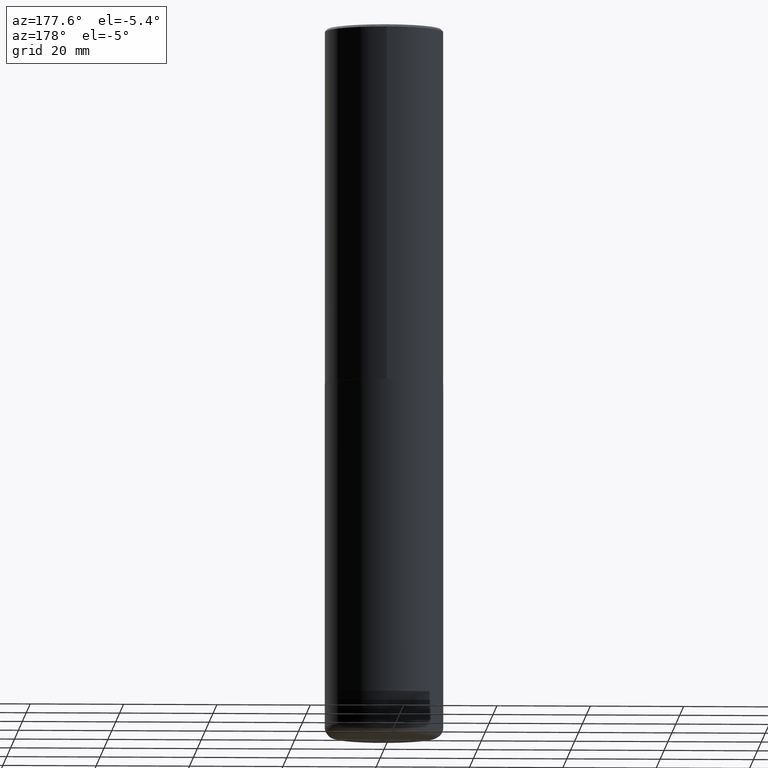
[diagram: clean part render]
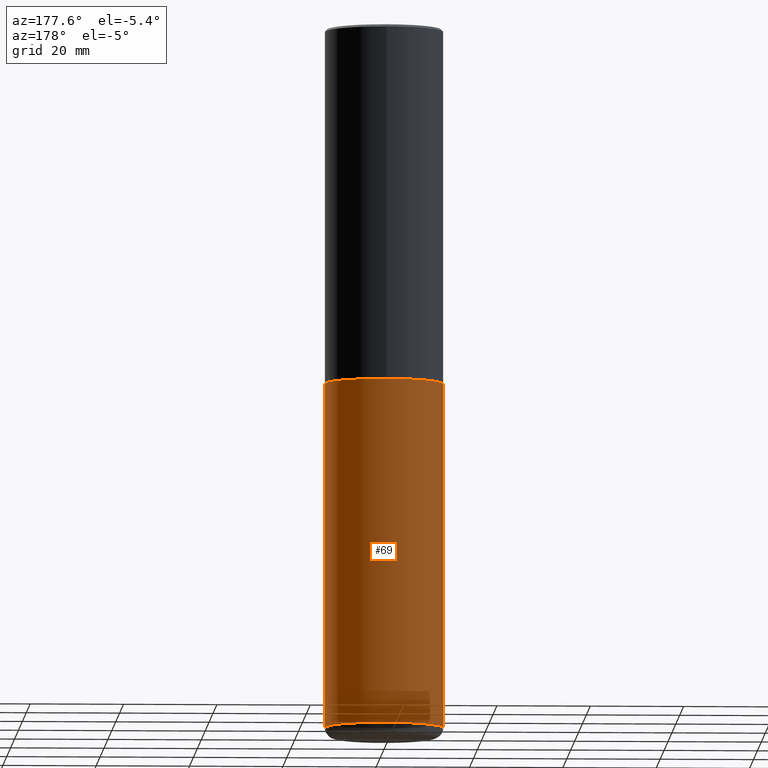
[diagram: same view with one face highlighted and labeled with its STEP entity id]
A machine part, auxiliary view. The second image highlights one B-rep face of the part: STEP entity #69.
In plain terms, the highlighted cylindrical surface (partial cylindrical patch) has radius 12.7 mm, axis along (-0, 0, 1).
Its self-contained STEP definition (entity closure, byte-faithful):
#14 = LINE ( 'NONE', #107, #204 ) ;
#20 = DIRECTION ( 'NONE',  ( -2.445468806185136877E-29, 3.491481338843145188E-15, 1.000000000000000000 ) ) ;
#26 = ORIENTED_EDGE ( 'NONE', *, *, #231, .F. ) ;
#27 = DIRECTION ( 'NONE',  ( 1.000000000000000000, -6.982962677686266711E-15, 0.000000000000000000 ) ) ;
#28 = EDGE_CURVE ( 'NONE', #376, #152, #300, .T. ) ;
#57 = VERTEX_POINT ( 'NONE', #256 ) ;
#68 = DIRECTION ( 'NONE',  ( -2.445468806185136597E-29, 3.491481338843145583E-15, 1.000000000000000000 ) ) ;
#69 = ADVANCED_FACE ( 'NONE', ( #70 ), #97, .T. ) ;
#70 = FACE_OUTER_BOUND ( 'NONE', #208, .T. ) ;
#82 = LINE ( 'NONE', #398, #329 ) ;
#86 = EDGE_CURVE ( 'NONE', #57, #281, #229, .T. ) ;
#97 = CYLINDRICAL_SURFACE ( 'NONE', #193, 0.5000000000000000000 ) ;
#107 = CARTESIAN_POINT ( 'NONE',  ( 0.5000000000000000000, -3.491481338843133355E-15, 2.438088387897967896E-29 ) ) ;
#110 = AXIS2_PLACEMENT_3D ( 'NONE', #321, #384, #27 ) ;
#152 = VERTEX_POINT ( 'NONE', #200 ) ;
#187 = DIRECTION ( 'NONE',  ( 1.000000000000000000, -6.982962677686266711E-15, 4.876176775795935793E-29 ) ) ;
#193 = AXIS2_PLACEMENT_3D ( 'NONE', #355, #68, #187 ) ;
#200 = CARTESIAN_POINT ( 'NONE',  ( -0.5000000000000001110, -1.708194103376248851E-14, -5.910000000000000142 ) ) ;
#204 = VECTOR ( 'NONE', #301, 39.37007874015748143 ) ;
#208 = EDGE_LOOP ( 'NONE', ( #312, #336, #412, #26 ) ) ;
#227 = CARTESIAN_POINT ( 'NONE',  ( -0.5000000000000000000, -1.200183568574571118E-14, -3.000000000000000444 ) ) ;
#229 = CIRCLE ( 'NONE', #110, 0.5000000000000000000 ) ;
#231 = EDGE_CURVE ( 'NONE', #376, #57, #14, .T. ) ;
#238 = CARTESIAN_POINT ( 'NONE',  ( 0.5000000000000001110, -2.412613605140612280E-14, -5.910000000000000142 ) ) ;
#254 = CARTESIAN_POINT ( 'NONE',  ( 1.445272064455415567E-28, -2.063465471256298944E-14, -5.910000000000000142 ) ) ;
#256 = CARTESIAN_POINT ( 'NONE',  ( 0.5000000000000000000, -1.396592535537257129E-14, -3.000000000000000444 ) ) ;
#270 = AXIS2_PLACEMENT_3D ( 'NONE', #254, #323, #318 ) ;
#281 = VERTEX_POINT ( 'NONE', #227 ) ;
#300 = CIRCLE ( 'NONE', #270, 0.5000000000000000000 ) ;
#301 = DIRECTION ( 'NONE',  ( -2.445468806185136877E-29, 3.491481338843145188E-15, 1.000000000000000000 ) ) ;
#312 = ORIENTED_EDGE ( 'NONE', *, *, #28, .T. ) ;
#318 = DIRECTION ( 'NONE',  ( 1.000000000000000000, -6.982962677686262766E-15, 0.000000000000000000 ) ) ;
#321 = CARTESIAN_POINT ( 'NONE',  ( 7.336406418555409790E-29, -1.047444401652943635E-14, -3.000000000000000444 ) ) ;
#323 = DIRECTION ( 'NONE',  ( -2.445468806185136597E-29, 3.491481338843145583E-15, 1.000000000000000000 ) ) ;
#329 = VECTOR ( 'NONE', #20, 39.37007874015748143 ) ;
#333 = EDGE_CURVE ( 'NONE', #152, #281, #82, .T. ) ;
#336 = ORIENTED_EDGE ( 'NONE', *, *, #333, .T. ) ;
#355 = CARTESIAN_POINT ( 'NONE',  ( 0.000000000000000000, 0.000000000000000000, 0.000000000000000000 ) ) ;
#376 = VERTEX_POINT ( 'NONE', #238 ) ;
#384 = DIRECTION ( 'NONE',  ( -2.445468806185136597E-29, 3.491481338843145583E-15, 1.000000000000000000 ) ) ;
#398 = CARTESIAN_POINT ( 'NONE',  ( -0.5000000000000000000, 3.552713678800500929E-15, -2.459467545127452891E-29 ) ) ;
#412 = ORIENTED_EDGE ( 'NONE', *, *, #86, .F. ) ;